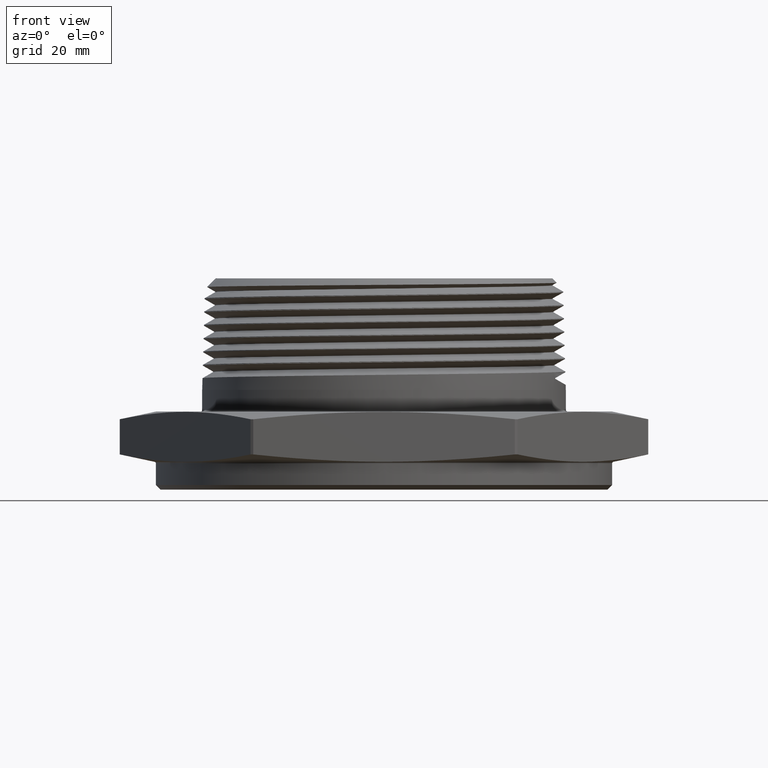
[diagram: clean part render]
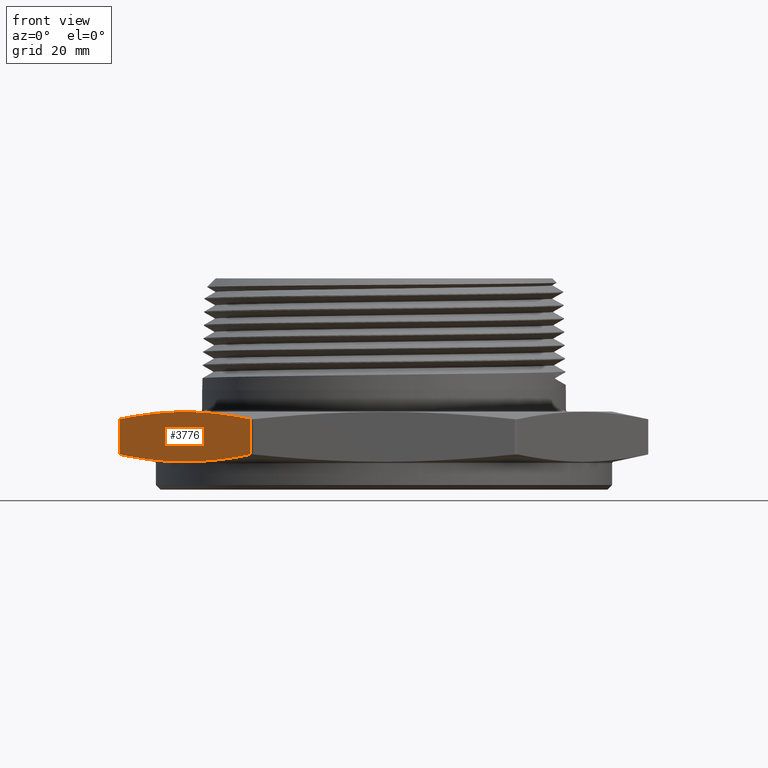
[diagram: same view with one face highlighted and labeled with its STEP entity id]
A machine part, front view. The second image highlights one B-rep face of the part: STEP entity #3776.
In plain terms, the highlighted planar face has unit normal (0.866, 0.5, -0).
Its self-contained STEP definition (entity closure, byte-faithful):
#1406 = AXIS2_PLACEMENT_3D ( 'NONE', #3507, #3512, #3513 ) ;
#1512 = VERTEX_POINT ( 'NONE', #7586 ) ;
#1518 = VERTEX_POINT ( 'NONE', #7069 ) ;
#1596 = VERTEX_POINT ( 'NONE', #7072 ) ;
#1627 = VERTEX_POINT ( 'NONE', #7030 ) ;
#1671 = EDGE_LOOP ( 'NONE', ( #7127, #7114, #7116, #7129 ) ) ;
#1794 = B_SPLINE_CURVE_WITH_KNOTS ( 'NONE', 3,
 ( #2362, #2357, #2370, #2371, #2372, #2373, #2374, #2375, #2376 ),
 .UNSPECIFIED., .F., .F.,
 ( 4, 2, 1, 2, 4 ),
 ( 1.901761468303867300E-006, 0.01084722133919247500, 0.02169254091691663600, 0.03253786049464079500, 0.04338318007236496200 ),
 .UNSPECIFIED. ) ;
#1799 = B_SPLINE_CURVE_WITH_KNOTS ( 'NONE', 3,
 ( #2406, #2405, #2416, #2417, #2418, #2419, #2420, #2421, #2422 ),
 .UNSPECIFIED., .F., .F.,
 ( 4, 2, 1, 2, 4 ),
 ( 1.901761468371354200E-006, 0.01084722133919253900, 0.02169254091691670900, 0.03253786049464087900, 0.04338318007236504500 ),
 .UNSPECIFIED. ) ;
#2331 = DIRECTION ( 'NONE',  ( 1.254986547952384500E-016, 0.0000000000000000000, 1.000000000000000000 ) ) ;
#2334 = CARTESIAN_POINT ( 'NONE',  ( -0.8720570199394857000, -1.489552934367705000, -5.358555188302547500E-017 ) ) ;
#2357 = CARTESIAN_POINT ( 'NONE',  ( -0.9432205342290145300, -1.366294111973087600, 0.2947932723352766300 ) ) ;
#2362 = CARTESIAN_POINT ( 'NONE',  ( -0.8720570199394855900, -1.489552934367704800, 0.2798258519637289400 ) ) ;
#2370 = CARTESIAN_POINT ( 'NONE',  ( -1.014384048518543100, -1.243035289578470000, 0.3069262541747562700 ) ) ;
#2371 = CARTESIAN_POINT ( 'NONE',  ( -1.156711077097600100, -0.9965176447892352100, 0.3234912303191855900 ) ) ;
#2372 = CARTESIAN_POINT ( 'NONE',  ( -1.299038105676657600, -0.7500000000000002200, 0.3322576384474141300 ) ) ;
#2373 = CARTESIAN_POINT ( 'NONE',  ( -1.441365134255714800, -0.5034823552107655600, 0.3234912303191857000 ) ) ;
#2374 = CARTESIAN_POINT ( 'NONE',  ( -1.583692162834772200, -0.2569647104215309600, 0.3069262541747566100 ) ) ;
#2375 = CARTESIAN_POINT ( 'NONE',  ( -1.654855677124300800, -0.1337058880269134100, 0.2947932723352766900 ) ) ;
#2376 = CARTESIAN_POINT ( 'NONE',  ( -1.726019191413829900, -0.01044706563229562600, 0.2798258519637290600 ) ) ;
#2405 = CARTESIAN_POINT ( 'NONE',  ( -1.654855677124301000, -0.1337058880269130500, 0.03520672766472325600 ) ) ;
#2406 = CARTESIAN_POINT ( 'NONE',  ( -1.726019191413830100, -0.01044706563229562700, 0.05017414803627098100 ) ) ;
#2416 = CARTESIAN_POINT ( 'NONE',  ( -1.583692162834772900, -0.2569647104215305200, 0.02307374582524356400 ) ) ;
#2417 = CARTESIAN_POINT ( 'NONE',  ( -1.441365134255714800, -0.5034823552107651200, 0.006508769680814197700 ) ) ;
#2418 = CARTESIAN_POINT ( 'NONE',  ( -1.299038105676657100, -0.7500000000000001100, -0.002257638447414314100 ) ) ;
#2419 = CARTESIAN_POINT ( 'NONE',  ( -1.156711077097600300, -0.9965176447892352100, 0.006508769680814157800 ) ) ;
#2420 = CARTESIAN_POINT ( 'NONE',  ( -1.014384048518542700, -1.243035289578470200, 0.02307374582524349800 ) ) ;
#2421 = CARTESIAN_POINT ( 'NONE',  ( -0.9432205342290142000, -1.366294111973087800, 0.03520672766472319300 ) ) ;
#2422 = CARTESIAN_POINT ( 'NONE',  ( -0.8720570199394855900, -1.489552934367704800, 0.05017414803627087700 ) ) ;
#3506 = PLANE ( 'NONE',  #1406 ) ;
#3507 = CARTESIAN_POINT ( 'NONE',  ( -1.732050807568877600, 5.452377601587149400E-016, 0.3300000000000000200 ) ) ;
#3512 = DIRECTION ( 'NONE',  ( 0.8660254037844386000, 0.5000000000000002200, -0.0000000000000000000 ) ) ;
#3513 = DIRECTION ( 'NONE',  ( -0.5000000000000001100, 0.8660254037844384900, 0.0000000000000000000 ) ) ;
#3551 = DIRECTION ( 'NONE',  ( -1.254986547952384500E-016, -0.0000000000000000000, -1.000000000000000000 ) ) ;
#3556 = CARTESIAN_POINT ( 'NONE',  ( -1.726019191413830100, -0.01044706563229562700, 5.358555188302547500E-017 ) ) ;
#3776 = ADVANCED_FACE ( 'NONE', ( #7714 ), #3506, .F. ) ;
#3899 = EDGE_CURVE ( 'NONE', #1627, #1596, #7743, .T. ) ;
#3969 = EDGE_CURVE ( 'NONE', #1518, #1512, #7795, .T. ) ;
#3983 = EDGE_CURVE ( 'NONE', #1512, #1627, #1794, .T. ) ;
#3988 = EDGE_CURVE ( 'NONE', #1596, #1518, #1799, .T. ) ;
#7030 = CARTESIAN_POINT ( 'NONE',  ( -1.726019191413829900, -0.01044706563229562600, 0.2798258519637290600 ) ) ;
#7069 = CARTESIAN_POINT ( 'NONE',  ( -0.8720570199394855900, -1.489552934367704800, 0.05017414803627087700 ) ) ;
#7072 = CARTESIAN_POINT ( 'NONE',  ( -1.726019191413830100, -0.01044706563229562700, 0.05017414803627098100 ) ) ;
#7114 = ORIENTED_EDGE ( 'NONE', *, *, #3969, .T. ) ;
#7116 = ORIENTED_EDGE ( 'NONE', *, *, #3983, .T. ) ;
#7127 = ORIENTED_EDGE ( 'NONE', *, *, #3988, .T. ) ;
#7129 = ORIENTED_EDGE ( 'NONE', *, *, #3899, .T. ) ;
#7586 = CARTESIAN_POINT ( 'NONE',  ( -0.8720570199394855900, -1.489552934367704800, 0.2798258519637289400 ) ) ;
#7714 = FACE_OUTER_BOUND ( 'NONE', #1671, .T. ) ;
#7743 = LINE ( 'NONE', #3556, #7745 ) ;
#7745 = VECTOR ( 'NONE', #3551, 39.37007874015748100 ) ;
#7795 = LINE ( 'NONE', #2334, #7799 ) ;
#7799 = VECTOR ( 'NONE', #2331, 39.37007874015748100 ) ;